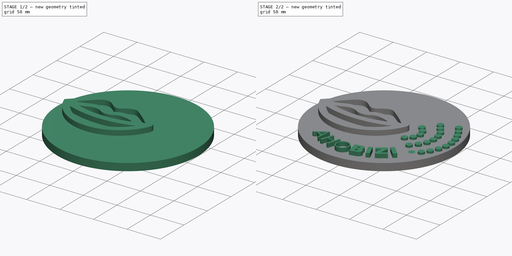
[diagram: build sequence overview — one tinted view per stage of 2, left to right]
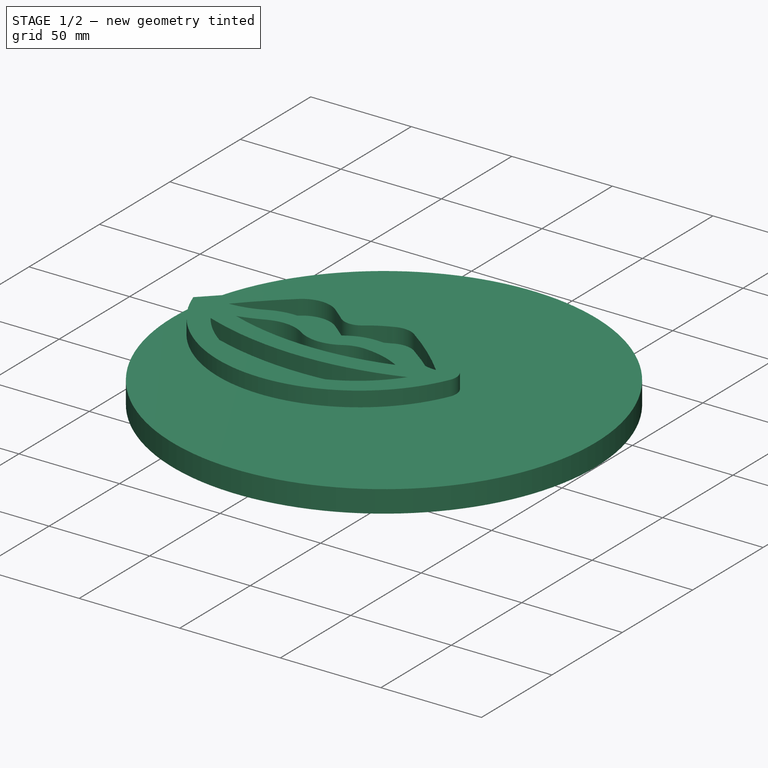
[diagram: stage 1 of 2 — iso view after this stage's code; geometry added in this stage tinted green]
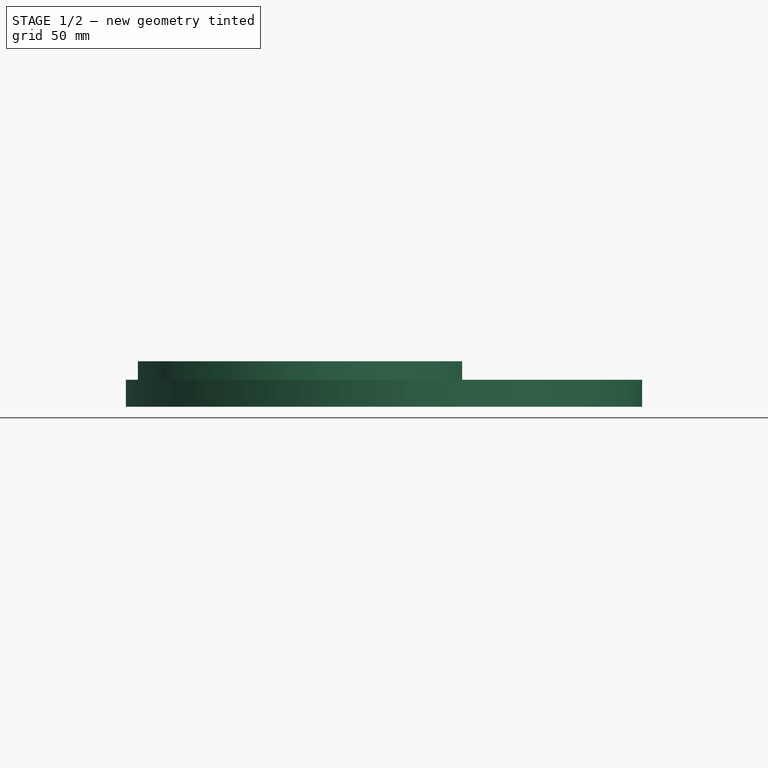
[diagram: stage 1 of 2 — front view after this stage's code; geometry added in this stage tinted green]
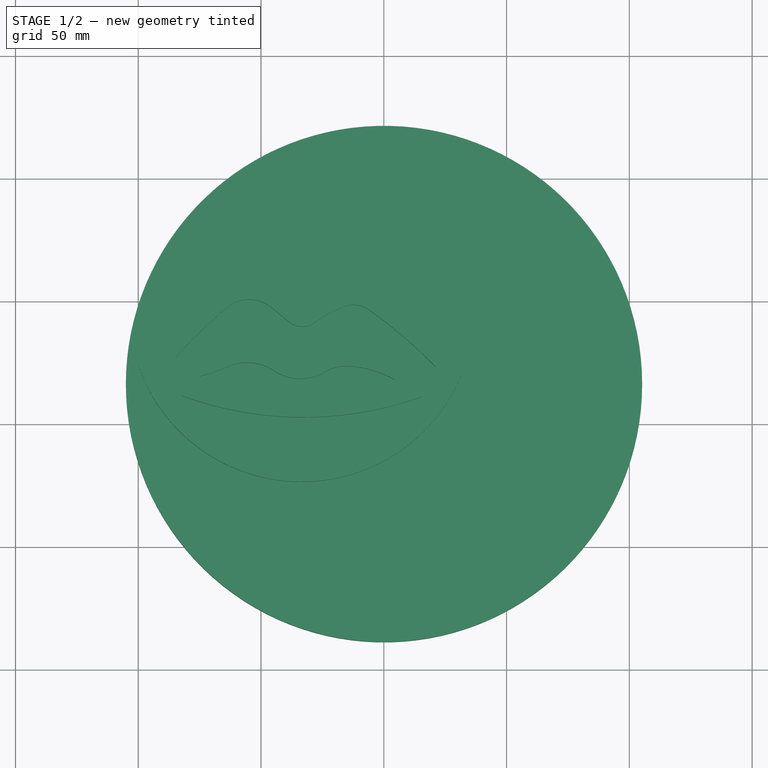
[diagram: stage 1 of 2 — top view after this stage's code; geometry added in this stage tinted green]
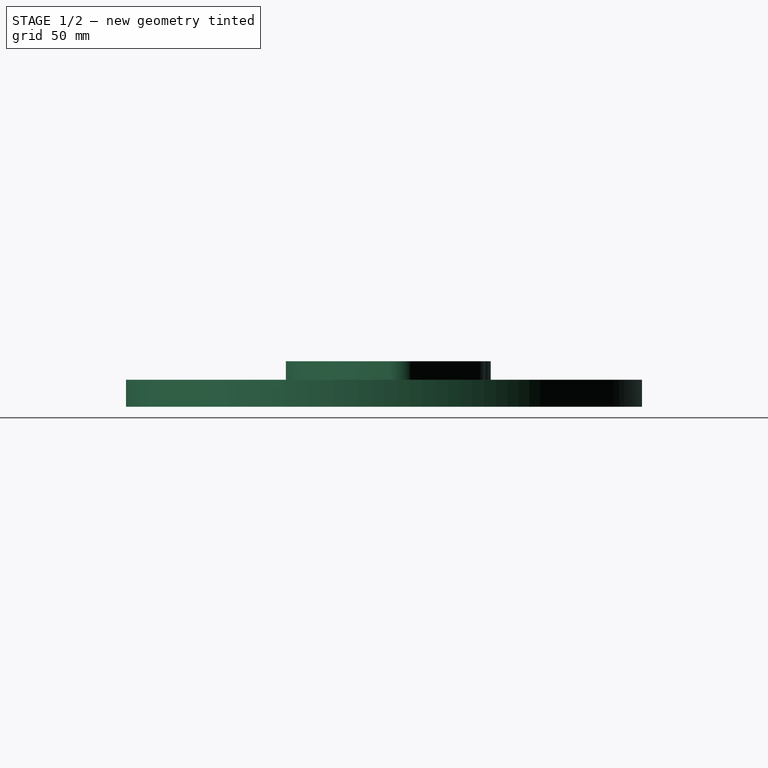
[diagram: stage 1 of 2 — right view after this stage's code; geometry added in this stage tinted green]
FCSTD DOCUMENT  (FreeCAD 0.17R13509 (Git))
Label: ahobiziprint
License: All rights reserved
LicenseURL: http://en.wikipedia.org/wiki/All_rights_reserved
objects: Sketcher::SketchObject×4, PartDesign::Pad×3, Image::ImagePlane×1, PartDesign::Body×1, Part::Extrusion×1
note: 12 computed .brp shape members not serialized (recipe doc carries the construction recipe); baked Part::Feature solids carry a one-line shape summary decoded from their .brp

FEATURE [Sketcher::SketchObject] Sketch
  AttachmentOffset = pos=(0,0,2) rot=(0,0,1;0rad)
  MapMode = 5
  Placement = pos=(0,0,2) rot=(0,0,1;0rad)
  Support = -> [XY_Plane]
  sketch-geometry (35):
    g0: ArcOfCircle CenterX=-54.96 CenterY=32.4011 CenterZ=0 NormalX=0 NormalY=0 NormalZ=1 AngleXU=0 Radius=27.4108 StartAngle=0.657185 EndAngle=1.91783
    g1: ArcOfCircle CenterX=-12.5361 CenterY=36.6491 CenterZ=0 NormalX=0 NormalY=0 NormalZ=1 AngleXU=0 Radius=20.9606 StartAngle=0.966163 EndAngle=2.07562
    g2: LineSegment StartX=-33.2584 StartY=49.1461 StartZ=0 EndX=-22.6738 EndY=54.995 EndZ=0
    g3: LineSegment StartX=-100.149 StartY=24.0859 StartZ=0 EndX=-67.7012 EndY=55.9874 EndZ=0
    g4: ArcOfCircle CenterX=-59.2836 CenterY=46.6132 CenterZ=0 NormalX=0 NormalY=0 NormalZ=1 AngleXU=0 Radius=12.5988 StartAngle=1.97882 EndAngle=2.30248
    g5: ArcOfCircle CenterX=-33.4694 CenterY=46.7902 CenterZ=0 NormalX=0 NormalY=0 NormalZ=1 AngleXU=0 Radius=70.4394 StartAngle=3.46978 EndAngle=5.87597
    g6: ArcOfCircle CenterX=23.6458 CenterY=22.1551 CenterZ=0 NormalX=0 NormalY=0 NormalZ=1 AngleXU=0 Radius=8.23782 StartAngle=5.87597 EndAngle=7.03551
    g7: ArcOfCircle CenterX=-107.113 CenterY=-100.228 CenterZ=0 NormalX=0 NormalY=0 NormalZ=1 AngleXU=0 Radius=187.334 StartAngle=0.752325 EndAngle=0.966163
    g8: ArcOfCircle CenterX=93.097 CenterY=-135.312 CenterZ=0 NormalX=0 NormalY=0 NormalZ=1 AngleXU=0 Radius=240.906 StartAngle=2.28219 EndAngle=2.40096
    g9: ArcOfCircle CenterX=-54.8745 CenterY=36.3577 CenterZ=0 NormalX=0 NormalY=0 NormalZ=1 AngleXU=0 Radius=14.2648 StartAngle=0.907424 EndAngle=2.28219
    g10: ArcOfCircle CenterX=-157.283 CenterY=-94.6793 CenterZ=0 NormalX=0 NormalY=0 NormalZ=1 AngleXU=0 Radius=180.572 StartAngle=0.856509 EndAngle=0.907424
    g11: ArcOfCircle CenterX=-33.2105 CenterY=48.4243 CenterZ=0 NormalX=0 NormalY=0 NormalZ=1 AngleXU=0 Radius=8.82832 StartAngle=3.9981 EndAngle=5.35945
    g12: ArcOfCircle CenterX=-2.05537 CenterY=7.19095 CenterZ=0 NormalX=0 NormalY=0 NormalZ=1 AngleXU=0 Radius=42.8518 StartAngle=1.93681 EndAngle=2.21786
    g13: ArcOfCircle CenterX=-12.3387 CenterY=37.485 CenterZ=0 NormalX=0 NormalY=0 NormalZ=1 AngleXU=0 Radius=10.9544 StartAngle=0.955555 EndAngle=2.05026
    g14: ArcOfCircle CenterX=-118.027 CenterY=-112.056 CenterZ=0 NormalX=0 NormalY=0 NormalZ=1 AngleXU=0 Radius=194.074 StartAngle=0.771565 EndAngle=0.955555
    g15: ArcOfCircle CenterX=-86.0031 CenterY=66.9836 CenterZ=0 NormalX=0 NormalY=0 NormalZ=1 AngleXU=0 Radius=39.764 StartAngle=4.74514 EndAngle=5.16075
    g16: ArcOfCircle CenterX=-56.873 CenterY=6.42593 CenterZ=0 NormalX=0 NormalY=0 NormalZ=1 AngleXU=0 Radius=27.4356 StartAngle=1.65463 EndAngle=2.01915
    g17: ArcOfCircle CenterX=-56.661 CenterY=3.9021 CenterZ=0 NormalX=0 NormalY=0 NormalZ=1 AngleXU=0 Radius=29.9683 StartAngle=1.11764 EndAngle=1.65463
    g18: ArcOfCircle CenterX=-34.2714 CenterY=38.3586 CenterZ=0 NormalX=0 NormalY=0 NormalZ=1 AngleXU=0 Radius=10.9231 StartAngle=4.21546 EndAngle=5.28021
    g19: ArcOfCircle CenterX=-89.2271 CenterY=-62.9751 CenterZ=0 NormalX=0 NormalY=0 NormalZ=1 AngleXU=0 Radius=104.353 StartAngle=1.07387 EndAngle=1.11764
    g20: ArcOfCircle CenterX=-15.7663 CenterY=9.34914 CenterZ=0 NormalX=0 NormalY=0 NormalZ=1 AngleXU=0 Radius=23.486 StartAngle=1.57158 EndAngle=2.13862
    g21: ArcOfCircle CenterX=-15.7473 CenterY=-14.8258 CenterZ=0 NormalX=0 NormalY=0 NormalZ=1 AngleXU=0 Radius=47.6609 StartAngle=1.26166 EndAngle=1.57158
    g22: ArcOfCircle CenterX=-32.6956 CenterY=-67.8922 CenterZ=0 NormalX=0 NormalY=0 NormalZ=1 AngleXU=0 Radius=103.368 StartAngle=1.1192 EndAngle=1.26166
    g23: ArcOfCircle CenterX=20.5085 CenterY=41.7999 CenterZ=0 NormalX=0 NormalY=0 NormalZ=1 AngleXU=0 Radius=18.5459 StartAngle=4.26079 EndAngle=4.74369
    g24: ArcOfCircle CenterX=-93.8165 CenterY=92.6253 CenterZ=0 NormalX=0 NormalY=0 NormalZ=1 AngleXU=0 Radius=75.6823 StartAngle=4.95825 EndAngle=5.12424
    g25: ArcOfCircle CenterX=-55.5381 CenterY=4.99803 CenterZ=0 NormalX=0 NormalY=0 NormalZ=1 AngleXU=0 Radius=19.9408 StartAngle=1.59582 EndAngle=1.98265
    g26: ArcOfCircle CenterX=-55.5584 CenterY=5.8066 CenterZ=0 NormalX=0 NormalY=0 NormalZ=1 AngleXU=0 Radius=19.132 StartAngle=0.976148 EndAngle=1.59582
    g27: ArcOfCircle CenterX=-34.0009 CenterY=37.6817 CenterZ=0 NormalX=0 NormalY=0 NormalZ=1 AngleXU=0 Radius=19.3484 StartAngle=4.11774 EndAngle=5.25576
    g28: ArcOfCircle CenterX=-15.4687 CenterY=7.00024 CenterZ=0 NormalX=0 NormalY=0 NormalZ=1 AngleXU=0 Radius=16.4956 StartAngle=1.51708 EndAngle=2.11417
    g29: ArcOfCircle CenterX=-16.9462 CenterY=-20.4781 CenterZ=0 NormalX=0 NormalY=0 NormalZ=1 AngleXU=0 Radius=44.0137 StartAngle=1.05711 EndAngle=1.51708
    g30: ArcOfCircle CenterX=-33.2971 CenterY=139.478 CenterZ=0 NormalX=0 NormalY=0 NormalZ=1 AngleXU=0 Radius=127.415 StartAngle=4.37565 EndAngle=5.01506
    g31: ArcOfCircle CenterX=-32.7899 CenterY=145.739 CenterZ=0 NormalX=0 NormalY=0 NormalZ=1 AngleXU=0 Radius=143.123 StartAngle=4.35494 EndAngle=5.05666
    g32: ArcOfCircle CenterX=-33.4498 CenterY=45.5227 CenterZ=0 NormalX=0 NormalY=0 NormalZ=1 AngleXU=0 Radius=59.9034 StartAngle=3.74232 EndAngle=5.66929
    g33: Circle CenterX=-4.20223 CenterY=-65.425 CenterZ=0 NormalX=0 NormalY=0 NormalZ=1 AngleXU=0 Radius=7.88772
    g34: Circle CenterX=-4.20223 CenterY=-65.425 CenterZ=0 NormalX=0 NormalY=0 NormalZ=1 AngleXU=0 Radius=9.98884
  constraints (34):
    c: Coincident(g2,g0)
    c: Tangent(g2,g1) = 1.5708
    c: Coincident(g4,g3)
    c: Coincident(g4,g0)
    c: Coincident(g5,g3)
    c: Tangent(g5,g6) = -1.5708
    c: PointOnObject(g7,g6)
    c: Tangent(g7,g1) = -1.5708
    c: Tangent(g6,g7) = -1.5708
    c: Tangent(g9,g8) = -1.5708
    c: Tangent(g10,g9) = -1.5708
    c: Tangent(g11,g10) = 1.5708
    c: Tangent(g12,g11) = 1.5708
    c: Coincident(g13,g12)
    c: Tangent(g14,g13) = -1.5708
    c: Coincident(g15,g8)
    c: Tangent(g16,g15) = 1.5708
    c: Tangent(g17,g16) = -1.5708
    c: Tangent(g19,g17) = -1.5708
    c: Tangent(g19,g18) = 1.5708
    c: Coincident(g23,g14)
    c: Tangent(g20,g18) = 1.5708
    c: Tangent(g21,g20) = -1.5708
    c: Tangent(g22,g21) = -1.5708
    c: Tangent(g23,g22) = 1.5708
    c: Coincident(g30,g29)
    c: Coincident(g30,g24)
    c: Tangent(g25,g24) = 1.5708
    c: Tangent(g26,g25) = -1.5708
    c: Tangent(g27,g26) = 1.5708
    c: Tangent(g28,g27) = 1.5708
    c: Tangent(g29,g28) = -1.5708
    c: Coincident(g32,g31)
    c: Coincident(g32,g31)
FEATURE [Image::ImagePlane] ImagePlane
  Placement = pos=(0,0,2) rot=(0,0,1;0rad)
  XSize = 250
  YSize = 250
FEATURE [PartDesign::Pad] Pad
  Length = 16.5
  Length2 = 100
  Profile = -> Sketch
  Refine = true
  Type = 0
FEATURE [Sketcher::SketchObject] Sketch003
  MapMode = 5
  Support = -> [XY_Plane]
  sketch-geometry (1):
    g0: Circle CenterX=0.083012 CenterY=16.3287 CenterZ=0 NormalX=0 NormalY=0 NormalZ=1 AngleXU=0 Radius=105.135
FEATURE [PartDesign::Pad] Pad001
  BaseFeature = -> Pad
  Length = 11
  Length2 = 100
  Profile = -> Sketch003
  Refine = true
  Type = 0
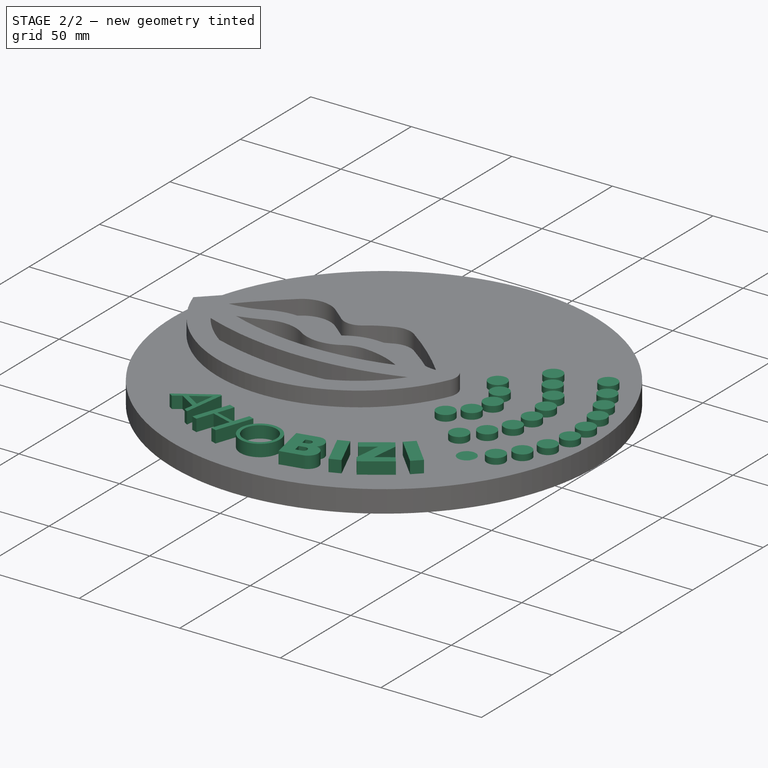
[diagram: stage 2 of 2 — iso view after this stage's code; geometry added in this stage tinted green]
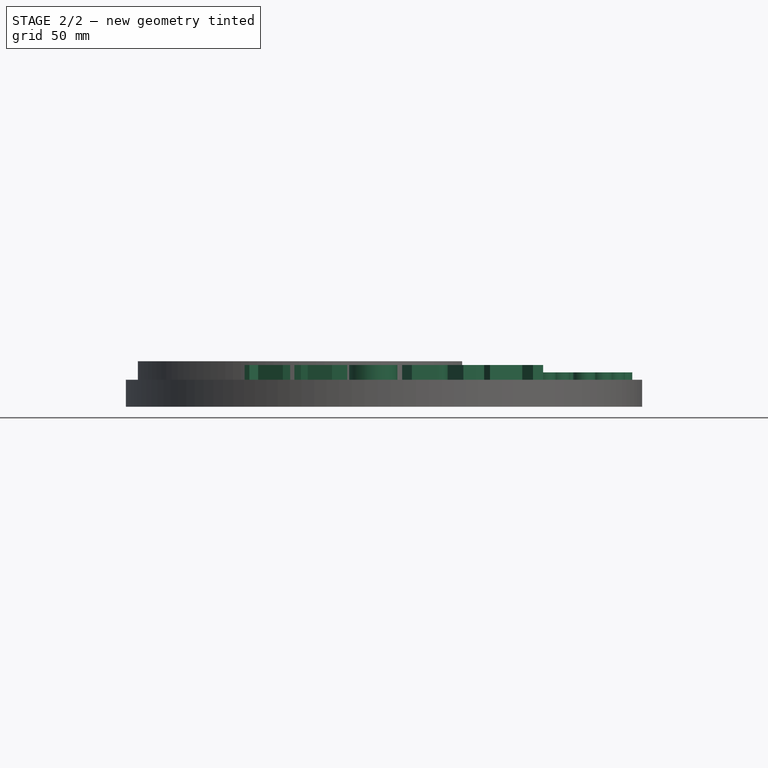
[diagram: stage 2 of 2 — front view after this stage's code; geometry added in this stage tinted green]
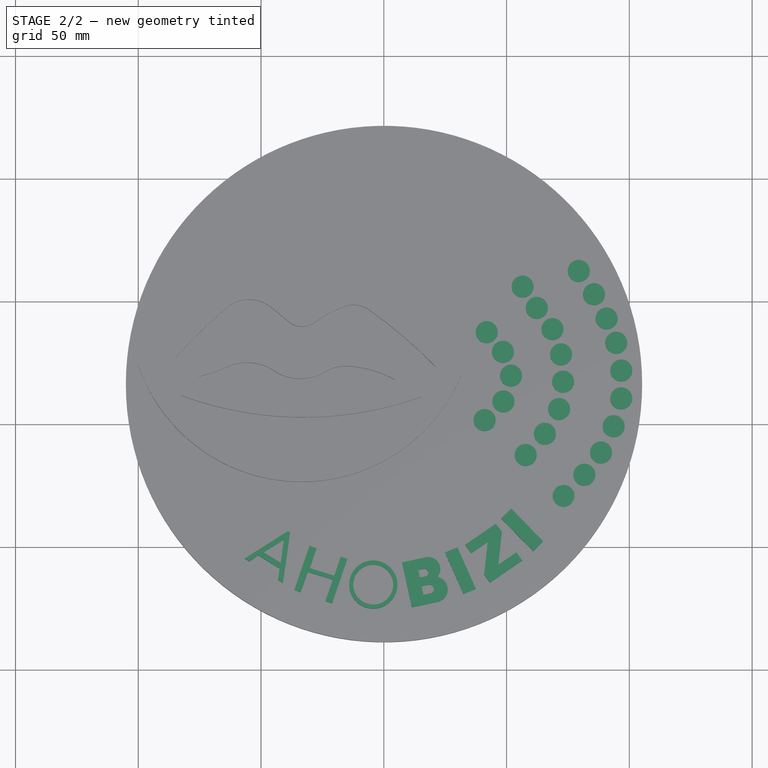
[diagram: stage 2 of 2 — top view after this stage's code; geometry added in this stage tinted green]
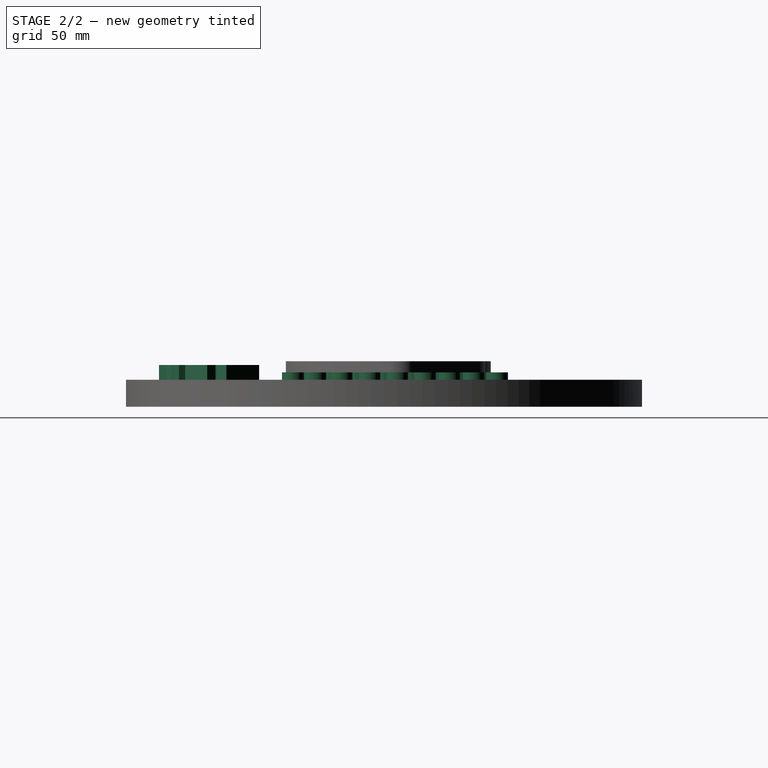
[diagram: stage 2 of 2 — right view after this stage's code; geometry added in this stage tinted green]
FEATURE [Sketcher::SketchObject] Sketch004
  MapMode = 5
  Placement = pos=(0,0,11) rot=(0,0,1;0rad)
  Support = -> [Pad001]
  sketch-geometry (24):
    g0: Circle CenterX=73.2245 CenterY=-29.3516 CenterZ=0 NormalX=0 NormalY=0 NormalZ=1 AngleXU=0 Radius=4.5
    g1: Circle CenterX=79.4038 CenterY=62.3078 CenterZ=0 NormalX=0 NormalY=0 NormalZ=1 AngleXU=0 Radius=4.5
    g2: Circle CenterX=85.5831 CenterY=52.8329 CenterZ=0 NormalX=0 NormalY=0 NormalZ=1 AngleXU=0 Radius=4.5
    g3: Circle CenterX=90.7325 CenterY=42.946 CenterZ=0 NormalX=0 NormalY=0 NormalZ=1 AngleXU=0 Radius=4.5
    g4: Circle CenterX=94.646 CenterY=33.0592 CenterZ=0 NormalX=0 NormalY=0 NormalZ=1 AngleXU=0 Radius=4.5
    g5: Circle CenterX=96.7058 CenterY=21.7305 CenterZ=0 NormalX=0 NormalY=0 NormalZ=1 AngleXU=0 Radius=4.5
    g6: Circle CenterX=96.7058 CenterY=10.4018 CenterZ=0 NormalX=0 NormalY=0 NormalZ=1 AngleXU=0 Radius=4.5
    g7: Circle CenterX=93.6162 CenterY=-0.92689 CenterZ=0 NormalX=0 NormalY=0 NormalZ=1 AngleXU=0 Radius=4.5
    g8: Circle CenterX=88.4667 CenterY=-11.6377 CenterZ=0 NormalX=0 NormalY=0 NormalZ=1 AngleXU=0 Radius=4.5
    g9: Circle CenterX=81.6695 CenterY=-20.7006 CenterZ=0 NormalX=0 NormalY=0 NormalZ=1 AngleXU=0 Radius=4.5
    g10: Circle CenterX=73.2245 CenterY=-29.3516 CenterZ=0 NormalX=0 NormalY=0 NormalZ=1 AngleXU=0 Radius=4.5
    g11: Circle CenterX=56.5404 CenterY=55.9225 CenterZ=0 NormalX=0 NormalY=0 NormalZ=1 AngleXU=0 Radius=4.5
    g12: Circle CenterX=62.3078 CenterY=47.2715 CenterZ=0 NormalX=0 NormalY=0 NormalZ=1 AngleXU=0 Radius=4.5
    g13: Circle CenterX=68.693 CenterY=38.6205 CenterZ=0 NormalX=0 NormalY=0 NormalZ=1 AngleXU=0 Radius=4.5
    g14: Circle CenterX=72.1946 CenterY=28.3217 CenterZ=0 NormalX=0 NormalY=0 NormalZ=1 AngleXU=0 Radius=4.5
    g15: Circle CenterX=73.0185 CenterY=17.199 CenterZ=0 NormalX=0 NormalY=0 NormalZ=1 AngleXU=0 Radius=4.5
    g16: Circle CenterX=71.3707 CenterY=6.07629 CenterZ=0 NormalX=0 NormalY=0 NormalZ=1 AngleXU=0 Radius=4.5
    g17: Circle CenterX=65.6034 CenterY=-4.01653 CenterZ=0 NormalX=0 NormalY=0 NormalZ=1 AngleXU=0 Radius=4.5
    g18: Circle CenterX=57.7763 CenterY=-12.6675 CenterZ=0 NormalX=0 NormalY=0 NormalZ=1 AngleXU=0 Radius=4.5
    g19: Circle CenterX=41.9161 CenterY=37.3847 CenterZ=0 NormalX=0 NormalY=0 NormalZ=1 AngleXU=0 Radius=4.5
    g20: Circle CenterX=48.5074 CenterY=29.3516 CenterZ=0 NormalX=0 NormalY=0 NormalZ=1 AngleXU=0 Radius=4.5
    g21: Circle CenterX=51.803 CenterY=19.6707 CenterZ=0 NormalX=0 NormalY=0 NormalZ=1 AngleXU=0 Radius=4.5
    g22: Circle CenterX=48.7134 CenterY=9.16594 CenterZ=0 NormalX=0 NormalY=0 NormalZ=1 AngleXU=0 Radius=4.5
    g23: Circle CenterX=41.0592 CenterY=1.55912 CenterZ=0 NormalX=0 NormalY=0 NormalZ=1 AngleXU=0 Radius=4.5
  constraints (18):
    c: Equal(g3,g4)
    c: Equal(g5,g6)
    c: Equal(g6,g7)
    c: Equal(g7,g8)
    c: Equal(g8,g4)
    c: Equal(g9,g10)
    c: Equal(g11,g12)
    c: Equal(g12,g13)
    c: Equal(g13,g14)
    c: Equal(g14,g15)
    c: Equal(g15,g16)
    c: Equal(g16,g17)
    c: Equal(g17,g18)
    c: Equal(g18,g22)
    c: Equal(g22,g21)
    c: Equal(g21,g20)
    c: Equal(g20,g19)
    c: Equal(g22,g23)
FEATURE [Sketcher::SketchObject] Sketch005
  MapMode = 5
  Placement = pos=(0,0,2) rot=(0,0,1;0rad)
  sketch-geometry (56):
    g0: LineSegment StartX=-56.6829 StartY=-54.8577 StartZ=0 EndX=-39.0746 EndY=-43.7179 EndZ=0
    g1: LineSegment StartX=-39.0746 StartY=-43.7179 StartZ=0 EndX=-38.1728 EndY=-44.2734 EndZ=0
    g2: LineSegment StartX=-38.1728 StartY=-44.2734 StartZ=0 EndX=-41.0795 EndY=-64.8007 EndZ=0
    g3: LineSegment StartX=-41.0795 StartY=-64.8007 StartZ=0 EndX=-43.0721 EndY=-63.5734 EndZ=0
    g4: LineSegment StartX=-43.0721 StartY=-63.5734 StartZ=0 EndX=-42.4163 EndY=-58.9415 EndZ=0
    g5: LineSegment StartX=-42.4163 StartY=-58.9415 StartZ=0 EndX=-51.1799 EndY=-53.5438 EndZ=0
    g6: LineSegment StartX=-51.1799 StartY=-53.5438 StartZ=0 EndX=-54.7307 EndY=-56.06 EndZ=0
    g7: LineSegment StartX=-54.7307 StartY=-56.06 StartZ=0 EndX=-56.6829 EndY=-54.8577 EndZ=0
    g8: LineSegment StartX=-48.9863 StartY=-52.2811 StartZ=0 EndX=-42.0038 EndY=-56.5816 EndZ=0
    g9: LineSegment StartX=-42.0038 StartY=-56.5816 StartZ=0 EndX=-40.6639 EndY=-47.1189 EndZ=0
    g10: LineSegment StartX=-40.6639 StartY=-47.1189 StartZ=0 EndX=-48.9863 EndY=-52.2811 EndZ=0
    g11: LineSegment StartX=-30.2752 StartY=-49.6585 StartZ=0 EndX=-27.3769 EndY=-50.6512 EndZ=0
    g12: LineSegment StartX=-27.3769 StartY=-50.6512 StartZ=0 EndX=-30.1572 EndY=-58.7801 EndZ=0
    g13: LineSegment StartX=-30.1572 StartY=-58.7801 StartZ=0 EndX=-20.1753 EndY=-61.8585 EndZ=0
    g14: LineSegment StartX=-20.1753 StartY=-61.8585 StartZ=0 EndX=-17.5391 EndY=-54.1511 EndZ=0
    g15: LineSegment StartX=-17.5391 StartY=-54.1511 StartZ=0 EndX=-14.8962 EndY=-55.0006 EndZ=0
    g16: LineSegment StartX=-14.8962 StartY=-55.0006 StartZ=0 EndX=-21.0733 EndY=-73.0606 EndZ=0
    g17: LineSegment StartX=-21.0733 StartY=-73.0606 StartZ=0 EndX=-23.7729 EndY=-72.1929 EndZ=0
    g18: LineSegment StartX=-23.7729 StartY=-72.1929 StartZ=0 EndX=-20.7868 EndY=-63.4626 EndZ=0
    g19: LineSegment StartX=-20.7868 StartY=-63.4626 StartZ=0 EndX=-30.9755 EndY=-60.3204 EndZ=0
    g20: LineSegment StartX=-30.9755 StartY=-60.3204 StartZ=0 EndX=-33.7904 EndY=-68.5505 EndZ=0
    g21: LineSegment StartX=-33.7904 StartY=-68.5505 StartZ=0 EndX=-36.4279 EndY=-67.6472 EndZ=0
    g22: LineSegment StartX=-36.4279 StartY=-67.6472 StartZ=0 EndX=-30.2752 EndY=-49.6585 EndZ=0
    g23: LineSegment StartX=17.0955 StartY=-54.3624 StartZ=0 EndX=7.444 EndY=-56.4593 EndZ=0
    g24: LineSegment StartX=7.444 StartY=-56.4593 StartZ=0 EndX=11.4155 EndY=-74.739 EndZ=0
    g25: LineSegment StartX=11.4155 StartY=-74.739 StartZ=0 EndX=21.9934 EndY=-72.4408 EndZ=0
    g26: ArcOfCircle CenterX=18.1337 CenterY=-59.1408 CenterZ=0 NormalX=0 NormalY=0 NormalZ=1 AngleXU=0 Radius=4.88991 StartAngle=5.56111 EndAngle=8.06792
    g27: ArcOfCircle CenterX=20.9037 CenterY=-67.4256 CenterZ=0 NormalX=0 NormalY=0 NormalZ=1 AngleXU=0 Radius=5.13224 StartAngle=4.92633 EndAngle=7.67781
    g28: LineSegment StartX=16.5901 StartY=-58.9896 StartZ=0 EndX=14.0597 EndY=-59.5344 EndZ=0
    g29: LineSegment StartX=14.0597 StartY=-59.5344 StartZ=0 EndX=14.7293 EndY=-62.6163 EndZ=0
    g30: LineSegment StartX=14.7293 StartY=-62.6163 StartZ=0 EndX=17.2165 EndY=-62.0807 EndZ=0
    g31: LineSegment StartX=18.3283 StartY=-65.4787 StartZ=0 EndX=15.3493 EndY=-66.1201 EndZ=0
    g32: LineSegment StartX=15.3493 StartY=-66.1201 StartZ=0 EndX=16.1226 EndY=-69.6791 EndZ=0
    g33: LineSegment StartX=16.1226 StartY=-69.6791 StartZ=0 EndX=19.3431 EndY=-68.9857 EndZ=0
    g34: ArcOfCircle CenterX=16.5279 CenterY=-60.6112 CenterZ=0 NormalX=0 NormalY=0 NormalZ=1 AngleXU=0 Radius=1.62283 StartAngle=5.15061 EndAngle=7.81565
    g35: ArcOfCircle CenterX=18.5452 CenterY=-67.3163 CenterZ=0 NormalX=0 NormalY=0 NormalZ=1 AngleXU=0 Radius=1.85034 StartAngle=5.15822 EndAngle=7.97148
    g36: LineSegment StartX=24.9115 StartY=-52.3825 StartZ=0 EndX=29.9876 EndY=-50.3483 EndZ=0
    g37: LineSegment StartX=29.9876 StartY=-50.3483 StartZ=0 EndX=37.4999 EndY=-67.2194 EndZ=0
    g38: LineSegment StartX=37.4999 StartY=-67.2194 StartZ=0 EndX=32.4238 EndY=-69.2536 EndZ=0
    g39: LineSegment StartX=32.4238 StartY=-69.2536 StartZ=0 EndX=24.9115 EndY=-52.3825 EndZ=0
    g40: LineSegment StartX=33.1106 StartY=-49.2949 StartZ=0 EndX=45.6325 EndY=-40.6876 EndZ=0
    g41: LineSegment StartX=45.6325 StartY=-40.6876 StartZ=0 EndX=48.0771 EndY=-44.0129 EndZ=0
    g42: LineSegment StartX=48.0771 StartY=-44.0129 StartZ=0 EndX=46.6451 EndY=-57.3892 EndZ=0
    g43: LineSegment StartX=46.6451 StartY=-57.3892 StartZ=0 EndX=53.9524 EndY=-52.3663 EndZ=0
    g44: LineSegment StartX=53.9524 StartY=-52.3663 StartZ=0 EndX=56.3696 EndY=-55.6543 EndZ=0
    g45: LineSegment StartX=56.3696 StartY=-55.6543 StartZ=0 EndX=43.2306 EndY=-64.6857 EndZ=0
    g46: LineSegment StartX=43.2306 StartY=-64.6857 StartZ=0 EndX=40.8821 EndY=-61.4912 EndZ=0
    g47: LineSegment StartX=40.8821 StartY=-61.4912 StartZ=0 EndX=42.3184 EndY=-48.0748 EndZ=0
    g48: LineSegment StartX=42.3184 StartY=-48.0748 StartZ=0 EndX=35.6058 EndY=-52.689 EndZ=0
    g49: LineSegment StartX=35.6058 StartY=-52.689 StartZ=0 EndX=33.1106 EndY=-49.2949 EndZ=0
    g50: LineSegment StartX=47.8167 StartY=-38.5165 StartZ=0 EndX=51.9235 EndY=-34.521 EndZ=0
    g51: LineSegment StartX=51.9235 StartY=-34.521 StartZ=0 EndX=64.8958 EndY=-47.8698 EndZ=0
    g52: LineSegment StartX=64.8958 StartY=-47.8698 StartZ=0 EndX=60.7889 EndY=-51.8653 EndZ=0
    g53: LineSegment StartX=60.7889 StartY=-51.8653 StartZ=0 EndX=47.8167 EndY=-38.5165 EndZ=0
    g54: Circle CenterX=-4.28362 CenterY=-65.4784 CenterZ=0 NormalX=0 NormalY=0 NormalZ=1 AngleXU=0 Radius=8.15002
    g55: Circle CenterX=-4.28362 CenterY=-65.4784 CenterZ=0 NormalX=0 NormalY=0 NormalZ=1 AngleXU=0 Radius=9.81646
  constraints (87):
    c: Coincident(g0,g1)
    c: Coincident(g1,g2)
    c: Coincident(g2,g3)
    c: Coincident(g3,g4)
    c: Coincident(g4,g5)
    c: Coincident(g5,g6)
    c: Coincident(g6,g7)
    c: Coincident(g7,g0)
    c: Coincident(g8,g9)
    c: Coincident(g9,g10)
    c: Coincident(g10,g8)
    c: Parallel(g9,g2)
    c: Parallel(g4,g2)
    c: Parallel(g8,g5)
    c: Parallel(g7,g5)
    c: Parallel(g3,g5)
    c: Parallel(g1,g8)
    c: Coincident(g11,g12)
    c: Coincident(g12,g13)
    c: Coincident(g13,g14)
    c: Coincident(g14,g15)
    c: Coincident(g15,g16)
    c: Coincident(g16,g17)
    c: Coincident(g17,g18)
    c: Coincident(g18,g19)
    c: Coincident(g19,g20)
    c: Coincident(g20,g21)
    c: Coincident(g21,g22)
    c: Coincident(g22,g11)
    c: Parallel(g11,g21)
    c: Parallel(g15,g17)
    c: Parallel(g16,g18)
    c: Parallel(g14,g16)
    c: Parallel(g13,g19)
    c: Parallel(g20,g22)
    c: Parallel(g12,g22)
    c: Parallel(g22,g16)
    c: Coincident(g23,g24)
    c: Coincident(g24,g25)
    c: Coincident(g27,g26)
    c: Tangent(g26,g23) = -1.5708
    c: Tangent(g27,g25) = -1.5708
    c: Perpendicular(g24,g23)
    c: Parallel(g23,g25)
    c: Coincident(g28,g29)
    c: Coincident(g29,g30)
    c: Coincident(g31,g32)
    c: Coincident(g32,g33)
    c: Coincident(g34,g28)
    c: Coincident(g34,g30)
    c: Coincident(g35,g31)
    c: Coincident(g35,g33)
    c: Parallel(g28,g30)
    c: Parallel(g30,g31)
    c: Parallel(g31,g33)
    c: Parallel(g29,g24)
    c: Parallel(g24,g32)
    c: Coincident(g36,g37)
    c: Coincident(g37,g38)
    c: Coincident(g38,g39)
    c: Coincident(g39,g36)
    c: Coincident(g40,g41)
    c: Coincident(g41,g42)
    c: Coincident(g42,g43)
    c: Coincident(g43,g44)
    c: Coincident(g44,g45)
    c: Coincident(g45,g46)
    c: Coincident(g46,g47)
    c: Coincident(g47,g48)
    c: Coincident(g49,g48)
    c: Coincident(g49,g40)
    c: Coincident(g50,g51)
    c: Coincident(g51,g52)
    c: Coincident(g52,g53)
    c: Coincident(g53,g50)
    c: Parallel(g36,g38)
    c: Parallel(g37,g39)
    c: Parallel(g40,g45)
    c: Parallel(g41,g49)
    c: Parallel(g44,g46)
    c: Parallel(g49,g46)
    c: Parallel(g42,g47)
    c: Parallel(g53,g51)
    c: Parallel(g50,g52)
    c: Parallel(g48,g40)
    c: Parallel(g43,g45)
    c: Coincident(g55,g54)
FEATURE [PartDesign::Pad] Pad003
  BaseFeature = -> Pad001
  Length = 15
  Length2 = 100
  Profile = -> Sketch005
  Refine = true
  Type = 0
FEATURE [PartDesign::Body] Body
  Group = -> [Sketch,Pad,Sketch003,Pad001,Sketch004,Sketch005,Pad003]
  Origin = -> Origin
  Tip = -> Pad003
FEATURE [Part::Extrusion] Extrude
  Base = -> Sketch004
  Dir = (0,0,1)
  DirMode = 2
  FaceMakerClass = Part::FaceMakerBullseye
  LengthFwd = 3
  LengthRev = 0
  Solid = true
  Symmetric = false
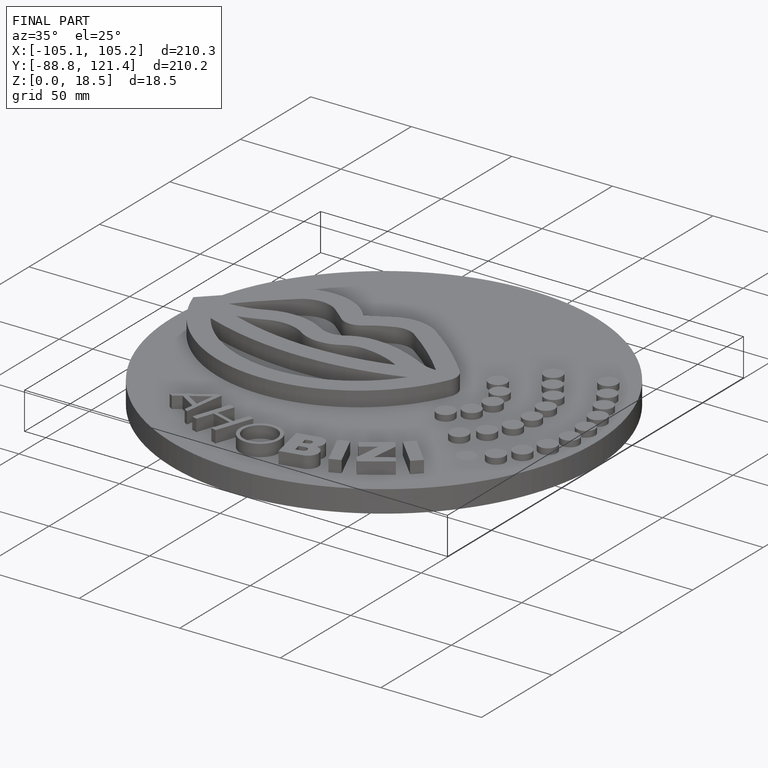
[diagram: finished part — iso view with bounding-box wireframe]
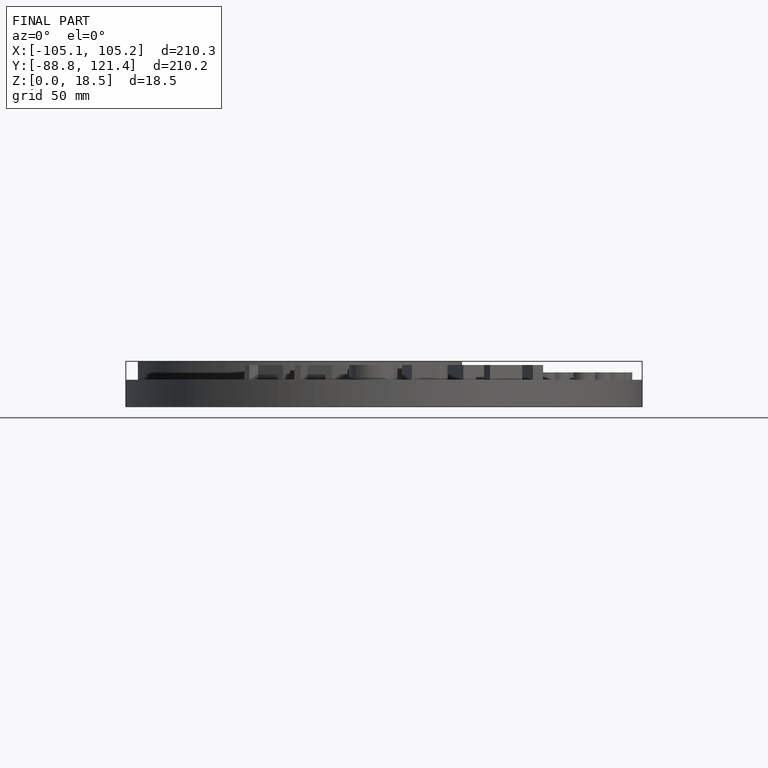
[diagram: finished part — front view with bounding-box wireframe]
